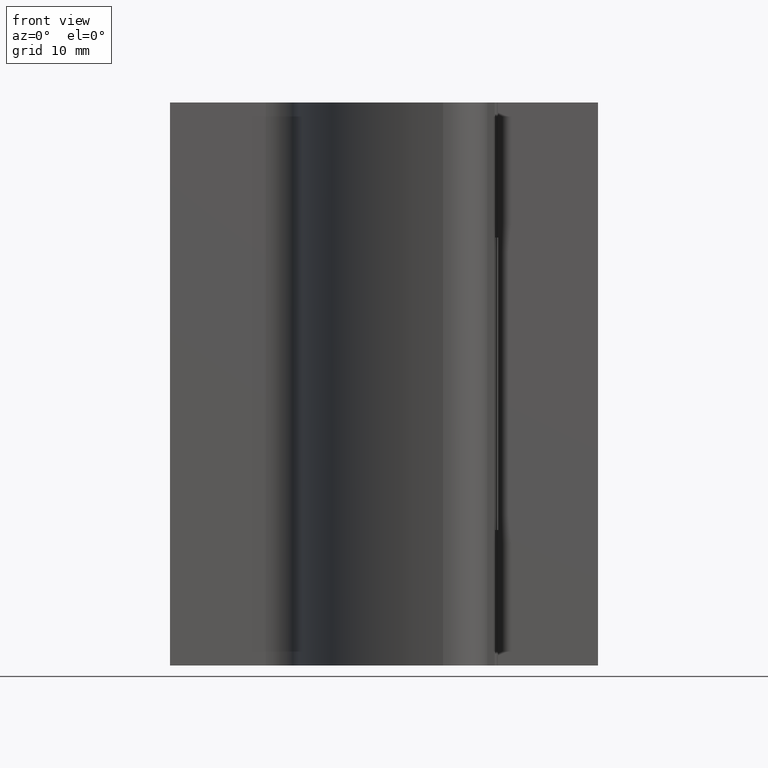
[diagram: clean part render]
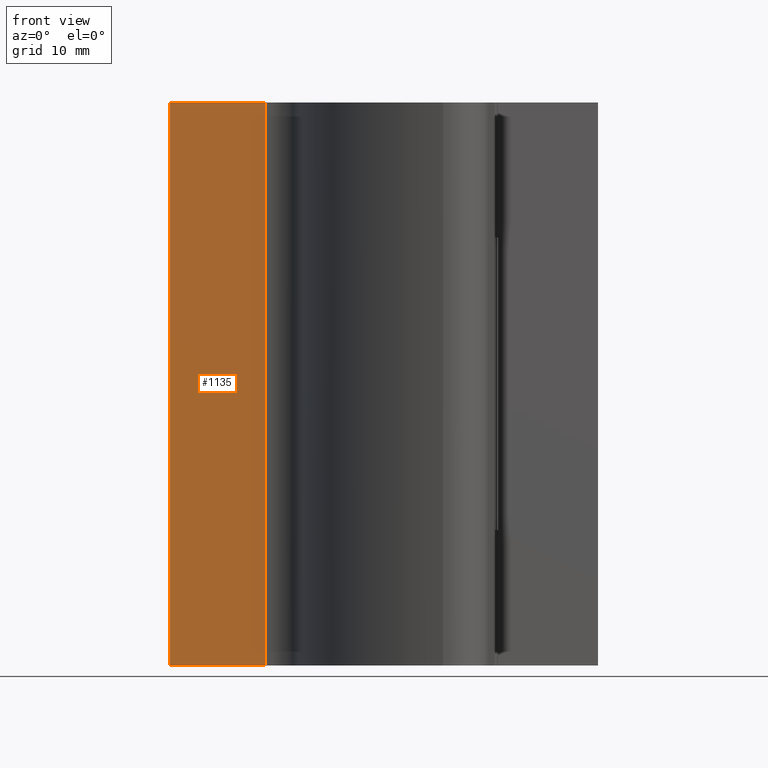
[diagram: same view with one face highlighted and labeled with its STEP entity id]
A machine part, front view. The second image highlights one B-rep face of the part: STEP entity #1135.
In plain terms, the highlighted face is a freeform B-spline surface patch.
Its self-contained STEP definition (entity closure, byte-faithful):
#1100=CARTESIAN_POINT('',(-26.424574967748232,1.500000000000000,-2.497500252740277));
#1101=CARTESIAN_POINT('',(-26.424574967748232,1.500000000000000,52.497508593844877));
#1102=CARTESIAN_POINT('',(-17.075425120122400,1.500000000000000,-2.497500252740277));
#1103=CARTESIAN_POINT('',(-17.075425120122400,1.500000000000000,52.497508593844877));
#1104=B_SPLINE_SURFACE_WITH_KNOTS('',1,1,((#1100,#1102),(#1101,#1103)),.UNSPECIFIED.,.F.,.F.,.U.,(2,2),(2,2),(0.0,54.995008846585172),(0.0,9.349149847625832),.UNSPECIFIED.);
#1105=CARTESIAN_POINT('',(-17.499999707891000,1.500000000000000,50.000006999999897));
#1106=VERTEX_POINT('',#1105);
#1107=CARTESIAN_POINT('',(-26.0,1.500000000000000,50.000006999999897));
#1108=VERTEX_POINT('',#1107);
#1109=CARTESIAN_POINT('',(-17.499999707891000,1.500000000000000,50.000006999999897));
#1110=CARTESIAN_POINT('',(-26.0,1.500000000000000,50.000006999999897));
#1111=QUASI_UNIFORM_CURVE('',1,(#1109,#1110),.UNSPECIFIED.,.F.,.U.);
#1112=EDGE_CURVE('',#1106,#1108,#1111,.T.);
#1113=ORIENTED_EDGE('',*,*,#1112,.T.);
#1114=CARTESIAN_POINT('',(-26.0,1.500000000000000,0.0));
#1115=VERTEX_POINT('',#1114);
#1116=CARTESIAN_POINT('',(-26.0,1.500000000000000,0.0));
#1117=CARTESIAN_POINT('',(-26.0,1.500000000000000,50.000006999999897));
#1118=QUASI_UNIFORM_CURVE('',1,(#1116,#1117),.UNSPECIFIED.,.F.,.U.);
#1119=EDGE_CURVE('',#1115,#1108,#1118,.T.);
#1120=ORIENTED_EDGE('',*,*,#1119,.F.);
#1121=CARTESIAN_POINT('',(-17.499999707891000,1.500000000000000,0.0));
#1122=VERTEX_POINT('',#1121);
#1123=CARTESIAN_POINT('',(-17.499999707891000,1.500000000000000,0.0));
#1124=CARTESIAN_POINT('',(-26.0,1.500000000000000,0.0));
#1125=QUASI_UNIFORM_CURVE('',1,(#1123,#1124),.UNSPECIFIED.,.F.,.U.);
#1126=EDGE_CURVE('',#1122,#1115,#1125,.T.);
#1127=ORIENTED_EDGE('',*,*,#1126,.F.);
#1128=CARTESIAN_POINT('',(-17.499999707891000,1.500000000000000,0.0));
#1129=CARTESIAN_POINT('',(-17.499999707891000,1.500000000000000,50.000006999999897));
#1130=QUASI_UNIFORM_CURVE('',1,(#1128,#1129),.UNSPECIFIED.,.F.,.U.);
#1131=EDGE_CURVE('',#1122,#1106,#1130,.T.);
#1132=ORIENTED_EDGE('',*,*,#1131,.T.);
#1133=EDGE_LOOP('',(#1113,#1120,#1127,#1132));
#1134=FACE_OUTER_BOUND('',#1133,.T.);
#1135=ADVANCED_FACE('',(#1134),#1104,.F.);